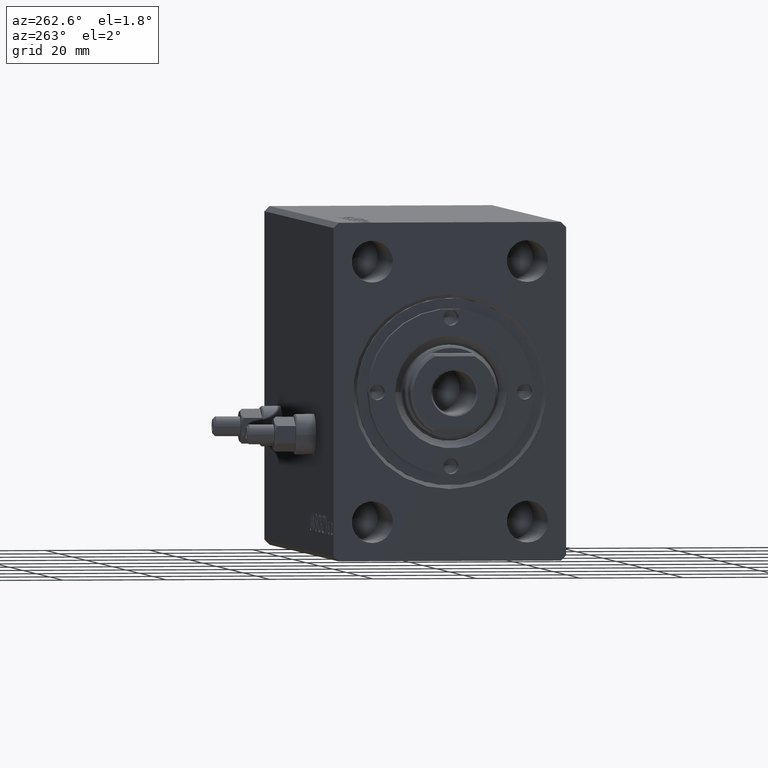
[diagram: clean part render]
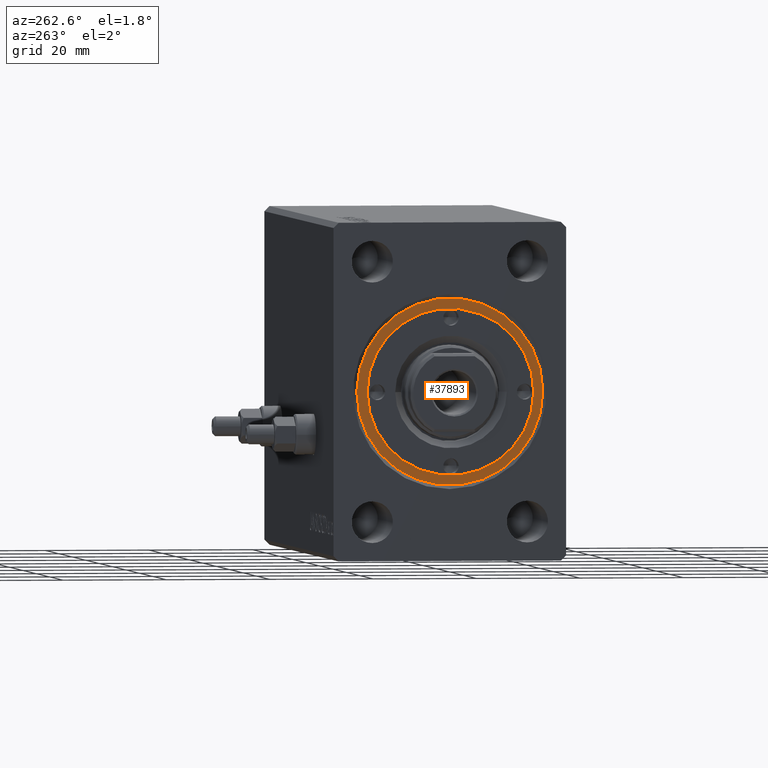
[diagram: same view with one face highlighted and labeled with its STEP entity id]
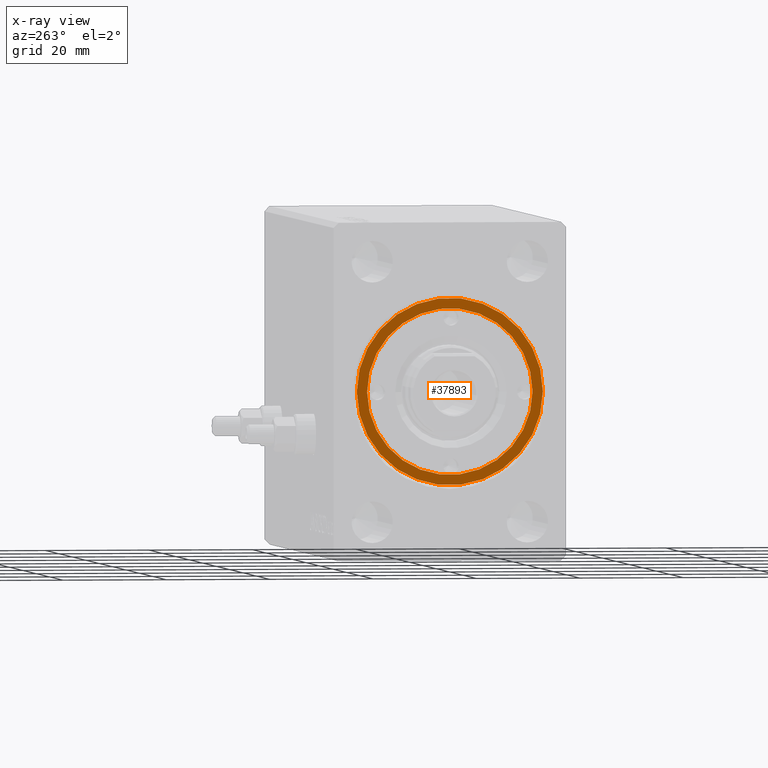
[diagram: x-ray of the same camera — body ghosted, the highlighted face saturated]
A machine part, auxiliary view. The second image highlights one B-rep face of the part: STEP entity #37893.
The next image is the same camera in x-ray: the body ghosted, the highlighted face saturated — about 0% of this face is hidden behind the body in this view.
In plain terms, the highlighted planar face has unit normal (-1, 0, 0).
Its self-contained STEP definition (entity closure, byte-faithful):
#249 = DIRECTION ( 'NONE',  ( 0.000000000000000000, 0.000000000000000000, 1.000000000000000000 ) ) ;
#627 = CARTESIAN_POINT ( 'NONE',  ( 0.000000000000000000, 0.000000000000000000, 5.200000000000000178 ) ) ;
#669 = VERTEX_POINT ( 'NONE', #25265 ) ;
#2181 = DIRECTION ( 'NONE',  ( 0.000000000000000000, 0.000000000000000000, 1.000000000000000000 ) ) ;
#2523 = DIRECTION ( 'NONE',  ( 0.000000000000000000, 0.000000000000000000, 1.000000000000000000 ) ) ;
#4001 = CARTESIAN_POINT ( 'NONE',  ( -16.00000000000000000, 0.000000000000000000, 5.200000000000000178 ) ) ;
#4300 = FACE_BOUND ( 'NONE', #43454, .T. ) ;
#4717 = EDGE_CURVE ( 'NONE', #6521, #33732, #35132, .T. ) ;
#6125 = CIRCLE ( 'NONE', #25851, 16.00000000000000000 ) ;
#6521 = VERTEX_POINT ( 'NONE', #4001 ) ;
#6899 = DIRECTION ( 'NONE',  ( 1.000000000000000000, 0.000000000000000000, 0.000000000000000000 ) ) ;
#7119 = CARTESIAN_POINT ( 'NONE',  ( 0.000000000000000000, 0.000000000000000000, 5.200000000000000178 ) ) ;
#9619 = CARTESIAN_POINT ( 'NONE',  ( 0.000000000000000000, 0.000000000000000000, 5.200000000000000178 ) ) ;
#9669 = ORIENTED_EDGE ( 'NONE', *, *, #4717, .F. ) ;
#14315 = AXIS2_PLACEMENT_3D ( 'NONE', #627, #38793, #14606 ) ;
#14606 = DIRECTION ( 'NONE',  ( 1.000000000000000000, 0.000000000000000000, -0.000000000000000000 ) ) ;
#16152 = DIRECTION ( 'NONE',  ( 1.000000000000000000, 0.000000000000000000, 0.000000000000000000 ) ) ;
#16188 = AXIS2_PLACEMENT_3D ( 'NONE', #25803, #39044, #39740 ) ;
#16887 = ORIENTED_EDGE ( 'NONE', *, *, #27508, .T. ) ;
#18025 = FACE_OUTER_BOUND ( 'NONE', #22841, .T. ) ;
#18944 = ORIENTED_EDGE ( 'NONE', *, *, #21319, .T. ) ;
#19097 = ORIENTED_EDGE ( 'NONE', *, *, #28559, .F. ) ;
#21319 = EDGE_CURVE ( 'NONE', #669, #23383, #25624, .T. ) ;
#21992 = AXIS2_PLACEMENT_3D ( 'NONE', #23664, #2181, #16152 ) ;
#22841 = EDGE_LOOP ( 'NONE', ( #18944, #16887 ) ) ;
#23383 = VERTEX_POINT ( 'NONE', #41762 ) ;
#23664 = CARTESIAN_POINT ( 'NONE',  ( 0.000000000000000000, 0.000000000000000000, 5.200000000000000178 ) ) ;
#25265 = CARTESIAN_POINT ( 'NONE',  ( -18.00000000000000000, 0.000000000000000000, 5.200000000000000178 ) ) ;
#25624 = CIRCLE ( 'NONE', #16188, 18.00000000000000000 ) ;
#25803 = CARTESIAN_POINT ( 'NONE',  ( 0.000000000000000000, 0.000000000000000000, 5.200000000000000178 ) ) ;
#25851 = AXIS2_PLACEMENT_3D ( 'NONE', #9619, #2523, #44327 ) ;
#27508 = EDGE_CURVE ( 'NONE', #23383, #669, #42549, .T. ) ;
#28559 = EDGE_CURVE ( 'NONE', #33732, #6521, #6125, .T. ) ;
#31946 = PLANE ( 'NONE',  #14315 ) ;
#33099 = AXIS2_PLACEMENT_3D ( 'NONE', #7119, #249, #6899 ) ;
#33732 = VERTEX_POINT ( 'NONE', #38038 ) ;
#35132 = CIRCLE ( 'NONE', #21992, 16.00000000000000000 ) ;
#37893 = ADVANCED_FACE ( 'NONE', ( #4300, #18025 ), #31946, .T. ) ;
#38038 = CARTESIAN_POINT ( 'NONE',  ( 16.00000000000000000, 1.959434878635765131E-15, 5.200000000000000178 ) ) ;
#38793 = DIRECTION ( 'NONE',  ( 0.000000000000000000, 0.000000000000000000, 1.000000000000000000 ) ) ;
#39044 = DIRECTION ( 'NONE',  ( 0.000000000000000000, 0.000000000000000000, 1.000000000000000000 ) ) ;
#39740 = DIRECTION ( 'NONE',  ( 1.000000000000000000, 0.000000000000000000, 0.000000000000000000 ) ) ;
#41762 = CARTESIAN_POINT ( 'NONE',  ( 18.00000000000000000, 2.204364238465235428E-15, 5.200000000000000178 ) ) ;
#42549 = CIRCLE ( 'NONE', #33099, 18.00000000000000000 ) ;
#43454 = EDGE_LOOP ( 'NONE', ( #9669, #19097 ) ) ;
#44327 = DIRECTION ( 'NONE',  ( 1.000000000000000000, 0.000000000000000000, 0.000000000000000000 ) ) ;